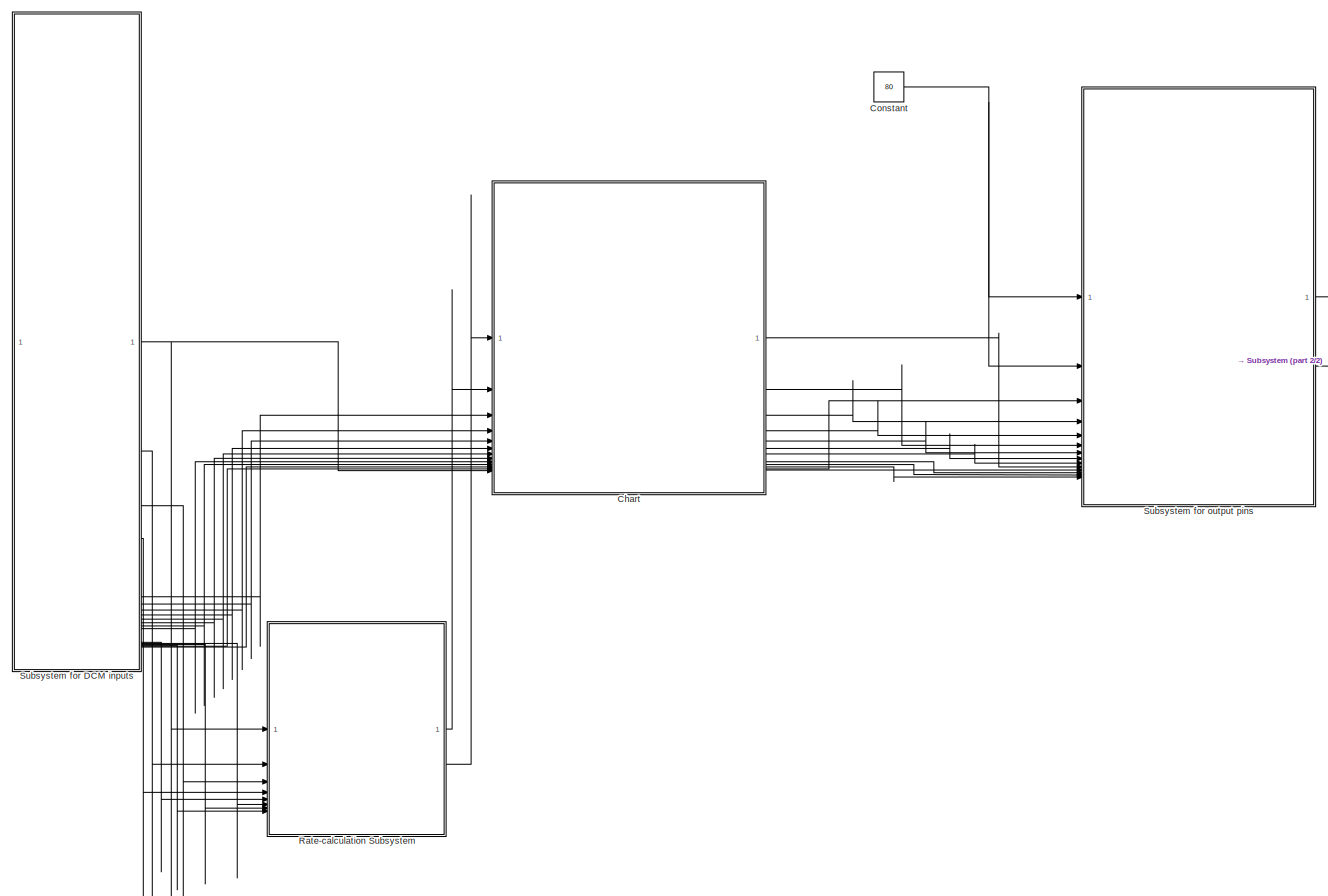
[diagram: root canvas - part 1/2, most of the canvas]
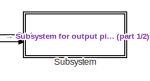
[diagram: root canvas - part 2/2, top right region]
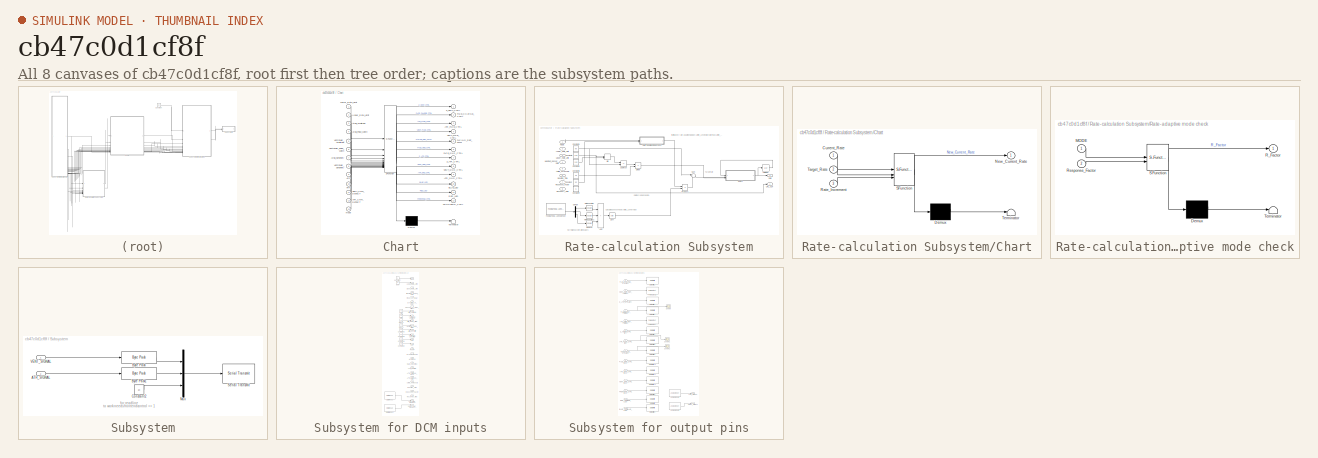
[diagram: thumbnail index - all 8 canvases of the model, root first then tree order]
MODEL slx_cb47c0d1cf8f
KIND model
CONFIG AbsTol = auto
CONFIG EnableMultiTasking = on
CONFIG FixedStep = 1e-3
CONFIG MaxStep = auto
CONFIG MinStep = auto
CONFIG RelTol = 1e-3
CONFIG SampleTimeConstraint = Unconstrained
CONFIG SolverName = FixedStepAuto
CONFIG StartTime = 0.0
CONFIG StopTime = 10
WORKSPACE source: mxarray member
WORKSPACE Initial_Value = 0
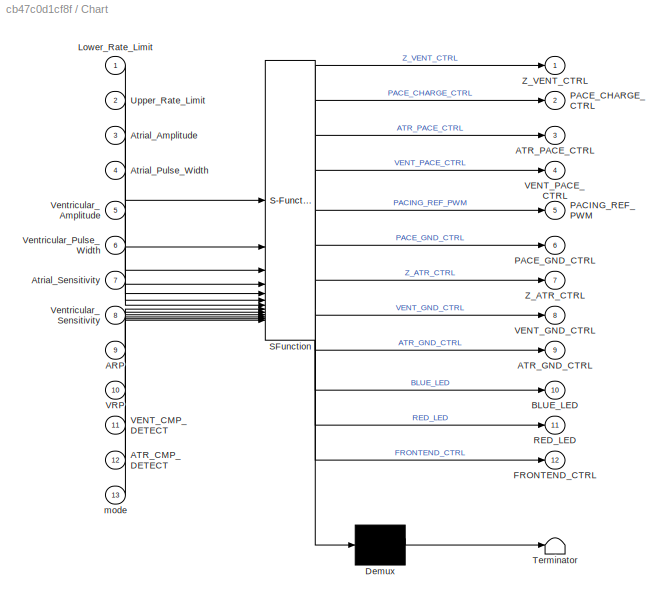
BLOCK [SubSystem] Chart
  ErrorFcn = Stateflow.Translate.translate
  PermitHierarchicalResolution = ExplicitOnly
  PortSchema = {"entries":[{"content":{"sides":[{"content":{"connectorIds":["In13","In1","In2","In3","In5","In4","In6","In7","In8","In10","In9","In12","In11"]},"type":"ConnectorPlacement.EquallySpacedRectSide","uuid":"4624e3e5-9266-4e51-8f1f-a7517f1382a8"},{"content":{"connectorIds":["Out12","Out3","Out4","Out2","Out5","Out6","Out7","Out1","Out8","Out9","Out10","Out11"],"side":"RIGHT"},"type":"ConnectorPlacement...<+378ch>
  SFBlockType = Chart
  TreatAsAtomicUnit = on
BLOCK [Demux] Chart/ Demux 
  Outputs = 1
BLOCK [S-Function] Chart/ SFunction 
  EnableBusSupport = on
  FunctionName = sf_sfun
  PortCounts = [13 13]
  SFcnIsStateOwnerBlock = off
  SFunctionDeploymentMode = off
  Tag = Stateflow S-Function 5
BLOCK [Terminator] Chart/ Terminator 
BLOCK [Inport] Chart/ARP
  Port = 9
BLOCK [Inport] Chart/ATR_CMP_DETECT
  Port = 12
BLOCK [Outport] Chart/ATR_GND_CTRL
  Port = 9
BLOCK [Outport] Chart/ATR_PACE_CTRL
  Port = 3
BLOCK [Inport] Chart/Atrial_Amplitude
  Port = 3
BLOCK [Inport] Chart/Atrial_Pulse_Width
  Port = 4
BLOCK [Inport] Chart/Atrial_Sensitivity
  Port = 7
BLOCK [Outport] Chart/BLUE_LED
  Port = 10
BLOCK [Outport] Chart/FRONTEND_CTRL
  Port = 12
BLOCK [Inport] Chart/Lower_Rate_Limit
BLOCK [Outport] Chart/PACE_CHARGE_CTRL
  Port = 2
BLOCK [Outport] Chart/PACE_GND_CTRL
  Port = 6
BLOCK [Outport] Chart/PACING_REF_PWM
  Port = 5
BLOCK [Outport] Chart/RED_LED
  Port = 11
BLOCK [Inport] Chart/Upper_Rate_Limit
  Port = 2
BLOCK [Inport] Chart/VENT_CMP_DETECT
  Port = 11
BLOCK [Outport] Chart/VENT_GND_CTRL
  Port = 8
BLOCK [Outport] Chart/VENT_PACE_CTRL
  Port = 4
BLOCK [Inport] Chart/VRP
  Port = 10
BLOCK [Inport] Chart/Ventricular_Amplitude
  Port = 5
BLOCK [Inport] Chart/Ventricular_Pulse_Width
  Port = 6
BLOCK [Inport] Chart/Ventricular_Sensitivity
  Port = 8
BLOCK [Outport] Chart/Z_ATR_CTRL
  Port = 7
BLOCK [Outport] Chart/Z_VENT_CTRL
BLOCK [Inport] Chart/mode
  Port = 13
BLOCK [Constant] Constant
  Value = 80
BLOCK [SubSystem] Rate-calculation Subsystem
BLOCK [Inport] Rate-calculation Subsystem/Activity_Threshold
  Port = 5
BLOCK [Sum] Rate-calculation Subsystem/Add
  IconShape = rectangular
  Inputs = +++
BLOCK [SubSystem] Rate-calculation Subsystem/Chart
  ErrorFcn = Stateflow.Translate.translate
  PermitHierarchicalResolution = ExplicitOnly
  SFBlockType = Chart
  TreatAsAtomicUnit = on
BLOCK [Demux] Rate-calculation Subsystem/Chart/ Demux 
  Outputs = 1
BLOCK [S-Function] Rate-calculation Subsystem/Chart/ SFunction 
  EnableBusSupport = on
  FunctionName = sf_sfun
  PortCounts = [3 2]
  SFcnIsStateOwnerBlock = off
  SFunctionDeploymentMode = off
  Tag = Stateflow S-Function 3
BLOCK [Terminator] Rate-calculation Subsystem/Chart/ Terminator 
BLOCK [Inport] Rate-calculation Subsystem/Chart/Current_Rate
BLOCK [Outport] Rate-calculation Subsystem/Chart/New_Current_Rate
BLOCK [Inport] Rate-calculation Subsystem/Chart/Rate_Increment
  Port = 3
BLOCK [Inport] Rate-calculation Subsystem/Chart/Target_Rate
  Port = 2
BLOCK [Constant] Rate-calculation Subsystem/Constant
  Value = 30
BLOCK [Constant] Rate-calculation Subsystem/Constant1
  Value = 60
BLOCK [Constant] Rate-calculation Subsystem/Constant2
  Value = 130
BLOCK [Constant] Rate-calculation Subsystem/Constant3
  Value = 10
BLOCK [Constant] Rate-calculation Subsystem/Constant4
  Value = 5
BLOCK [Constant] Rate-calculation Subsystem/Constant5
  Value = 140
BLOCK [Demux] Rate-calculation Subsystem/Demux
  Outputs = 3
BLOCK [Product] Rate-calculation Subsystem/Divide
  Inputs = */
BLOCK [Reference] Rate-calculation Subsystem/FXOS8700 6-Axes Sensor  REF=frdmk64flib/FXOS8700 6-Axes Sensor
  SourceBlock = frdmk64flib/FXOS8700 6-Axes Sensor
  SourceType = freedomk64f.fxos8700
BLOCK [Inport] Rate-calculation Subsystem/Lower_Rate_Limit
  Port = 2
BLOCK [Inport] Rate-calculation Subsystem/MODE
BLOCK [Math] Rate-calculation Subsystem/Math Function
  Operator = square
  RndMeth = Zero
  SignedPower = on
BLOCK [Math] Rate-calculation Subsystem/Math Function1
  Operator = square
  RndMeth = Zero
  SignedPower = on
BLOCK [Inport] Rate-calculation Subsystem/Maximum_Sensor_Rate
  Port = 4
BLOCK [MinMax] Rate-calculation Subsystem/Min
  Inputs = 2
BLOCK [Product] Rate-calculation Subsystem/Product
BLOCK [Outport] Rate-calculation Subsystem/Rate
  Port = 2
BLOCK [SubSystem] Rate-calculation Subsystem/Rate-adaptive mode check
  ErrorFcn = Stateflow.Translate.translate
  PermitHierarchicalResolution = ExplicitOnly
  SFBlockType = Chart
  TreatAsAtomicUnit = on
BLOCK [Demux] Rate-calculation Subsystem/Rate-adaptive mode check/ Demux 
  Outputs = 1
BLOCK [S-Function] Rate-calculation Subsystem/Rate-adaptive mode check/ SFunction 
  EnableBusSupport = on
  FunctionName = sf_sfun
  PortCounts = [2 2]
  SFcnIsStateOwnerBlock = off
  SFunctionDeploymentMode = off
  Tag = Stateflow S-Function 10
BLOCK [Terminator] Rate-calculation Subsystem/Rate-adaptive mode check/ Terminator 
BLOCK [Inport] Rate-calculation Subsystem/Rate-adaptive mode check/MODE
BLOCK [Outport] Rate-calculation Subsystem/Rate-adaptive mode check/R_Factor
BLOCK [Inport] Rate-calculation Subsystem/Rate-adaptive mode check/Response_Factor
  Port = 2
BLOCK [Inport] Rate-calculation Subsystem/Reaction_Time
  Port = 6
BLOCK [Inport] Rate-calculation Subsystem/Recovery_Time
  Port = 8
BLOCK [Inport] Rate-calculation Subsystem/Response_Factor
  Port = 7
BLOCK [Sqrt] Rate-calculation Subsystem/Sqrt
BLOCK [Math] Rate-calculation Subsystem/Square
  Operator = square
BLOCK [Sum] Rate-calculation Subsystem/Subtract
  IconShape = rectangular
  Inputs = +-
BLOCK [Sum] Rate-calculation Subsystem/Sum
  Inputs = |++
BLOCK [Outport] Rate-calculation Subsystem/URL_OUT
BLOCK [UnitDelay] Rate-calculation Subsystem/Unit Delay
  HasFrameUpgradeWarning = on
  SampleTime = -1
BLOCK [Inport] Rate-calculation Subsystem/Upper_Rate_Limit
  Port = 3
BLOCK [SubSystem] Subsystem
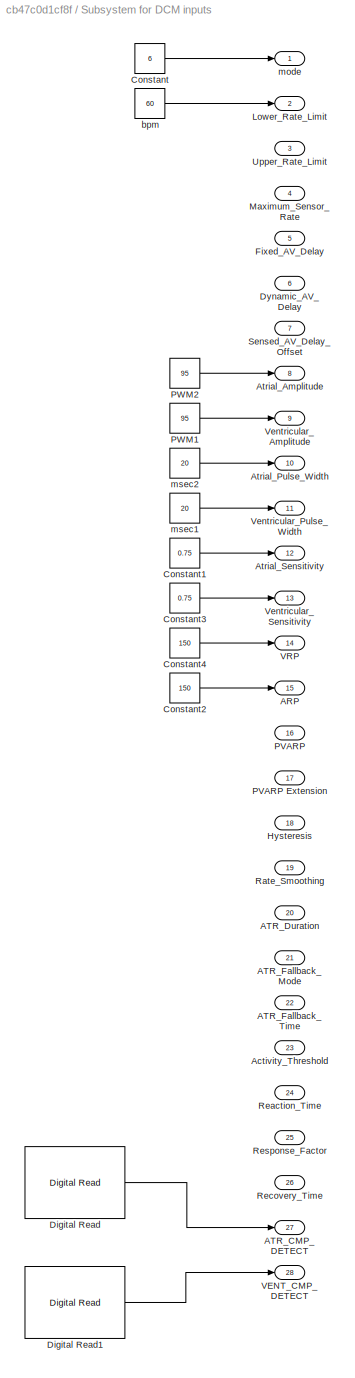
BLOCK [SubSystem] Subsystem for DCM inputs
BLOCK [Outport] Subsystem for DCM inputs/ARP
  Port = 15
BLOCK [Outport] Subsystem for DCM inputs/ATR_CMP_DETECT
  Port = 27
BLOCK [Outport] Subsystem for DCM inputs/ATR_Duration
  Port = 20
BLOCK [Outport] Subsystem for DCM inputs/ATR_Fallback_Mode
  Port = 21
BLOCK [Outport] Subsystem for DCM inputs/ATR_Fallback_Time
  Port = 22
BLOCK [Outport] Subsystem for DCM inputs/Activity_Threshold
  Port = 23
BLOCK [Outport] Subsystem for DCM inputs/Atrial_Amplitude
  Port = 8
BLOCK [Outport] Subsystem for DCM inputs/Atrial_Pulse_Width
  Port = 10
BLOCK [Outport] Subsystem for DCM inputs/Atrial_Sensitivity
  Port = 12
BLOCK [Constant] Subsystem for DCM inputs/Constant
  Value = 6
BLOCK [Constant] Subsystem for DCM inputs/Constant1
  Value = 0.75
BLOCK [Constant] Subsystem for DCM inputs/Constant2
  Value = 150
BLOCK [Constant] Subsystem for DCM inputs/Constant3
  Value = 0.75
BLOCK [Constant] Subsystem for DCM inputs/Constant4
  Value = 150
BLOCK [Reference] Subsystem for DCM inputs/Digital Read  REF=frdmk64flib/Digital Read
  SourceBlock = frdmk64flib/Digital Read
  SourceType = freedomk64f.DigitalRead
BLOCK [Reference] Subsystem for DCM inputs/Digital Read1  REF=frdmk64flib/Digital Read
  SourceBlock = frdmk64flib/Digital Read
  SourceType = freedomk64f.DigitalRead
BLOCK [Outport] Subsystem for DCM inputs/Dynamic_AV_Delay
  Port = 6
BLOCK [Outport] Subsystem for DCM inputs/Fixed_AV_Delay
  Port = 5
BLOCK [Outport] Subsystem for DCM inputs/Hysteresis
  Port = 18
BLOCK [Outport] Subsystem for DCM inputs/Lower_Rate_Limit
  Port = 2
BLOCK [Outport] Subsystem for DCM inputs/Maximum_Sensor_Rate
  Port = 4
BLOCK [Outport] Subsystem for DCM inputs/PVARP
  Port = 16
BLOCK [Outport] Subsystem for DCM inputs/PVARP Extension
  Port = 17
BLOCK [Constant] Subsystem for DCM inputs/PWM1
  Value = 95
BLOCK [Constant] Subsystem for DCM inputs/PWM2
  Value = 95
BLOCK [Outport] Subsystem for DCM inputs/Rate_Smoothing
  Port = 19
BLOCK [Outport] Subsystem for DCM inputs/Reaction_Time
  Port = 24
BLOCK [Outport] Subsystem for DCM inputs/Recovery_Time
  Port = 26
BLOCK [Outport] Subsystem for DCM inputs/Response_Factor
  Port = 25
BLOCK [Outport] Subsystem for DCM inputs/Sensed_AV_Delay_Offset
  Port = 7
BLOCK [Outport] Subsystem for DCM inputs/Upper_Rate_Limit
  Port = 3
BLOCK [Outport] Subsystem for DCM inputs/VENT_CMP_DETECT
  Port = 28
BLOCK [Outport] Subsystem for DCM inputs/VRP
  Port = 14
BLOCK [Outport] Subsystem for DCM inputs/Ventricular_Amplitude
  Port = 9
BLOCK [Outport] Subsystem for DCM inputs/Ventricular_Pulse_Width
  Port = 11
BLOCK [Outport] Subsystem for DCM inputs/Ventricular_Sensitivity
  Port = 13
BLOCK [Constant] Subsystem for DCM inputs/bpm
  Value = 60
BLOCK [Outport] Subsystem for DCM inputs/mode
BLOCK [Constant] Subsystem for DCM inputs/msec1
  Value = 20
BLOCK [Constant] Subsystem for DCM inputs/msec2
  Value = 20
BLOCK [SubSystem] Subsystem for output pins
BLOCK [Inport] Subsystem for output pins/ATR_CMP_REF_PWM (D6)
BLOCK [Inport] Subsystem for output pins/ATR_GND_CTRL (D11)
  Port = 12
BLOCK [Inport] Subsystem for output pins/ATR_PACE_CTRL (D8)
  Port = 4
BLOCK [Outport] Subsystem for output pins/ATR_SIGNAL
  Port = 2
BLOCK [Reference] Subsystem for output pins/Analog Input3  REF=frdmk64flib/Analog Input
  SourceBlock = frdmk64flib/Analog Input
  SourceType = freedomk64f.AnalogInput
BLOCK [Reference] Subsystem for output pins/Analog Input4  REF=frdmk64flib/Analog Input
  SourceBlock = frdmk64flib/Analog Input
  SourceType = freedomk64f.AnalogInput
BLOCK [Inport] Subsystem for output pins/BLUE_LED (BLUE_LED)
  Port = 13
BLOCK [Reference] Subsystem for output pins/Digital Write  REF=frdmk64flib/Digital Write
  SourceBlock = frdmk64flib/Digital Write
  SourceType = freedomk64f.DigitalWrite
BLOCK [Reference] Subsystem for output pins/Digital Write1  REF=frdmk64flib/Digital Write
  SourceBlock = frdmk64flib/Digital Write
  SourceType = freedomk64f.DigitalWrite
BLOCK [Reference] Subsystem for output pins/Digital Write10  REF=frdmk64flib/Digital Write
  SourceBlock = frdmk64flib/Digital Write
  SourceType = freedomk64f.DigitalWrite
BLOCK [Reference] Subsystem for output pins/Digital Write11  REF=frdmk64flib/Digital Write
  SourceBlock = frdmk64flib/Digital Write
  SourceType = freedomk64f.DigitalWrite
BLOCK [Reference] Subsystem for output pins/Digital Write14  REF=frdmk64flib/Digital Write
  SourceBlock = frdmk64flib/Digital Write
  SourceType = freedomk64f.DigitalWrite
BLOCK [Reference] Subsystem for output pins/Digital Write2  REF=frdmk64flib/Digital Write
  SourceBlock = frdmk64flib/Digital Write
  SourceType = freedomk64f.DigitalWrite
BLOCK [Reference] Subsystem for output pins/Digital Write3  REF=frdmk64flib/Digital Write
  SourceBlock = frdmk64flib/Digital Write
  SourceType = freedomk64f.DigitalWrite
BLOCK [Reference] Subsystem for output pins/Digital Write4  REF=frdmk64flib/Digital Write
  SourceBlock = frdmk64flib/Digital Write
  SourceType = freedomk64f.DigitalWrite
BLOCK [Reference] Subsystem for output pins/Digital Write5  REF=frdmk64flib/Digital Write
  SourceBlock = frdmk64flib/Digital Write
  SourceType = freedomk64f.DigitalWrite
BLOCK [Reference] Subsystem for output pins/Digital Write7  REF=frdmk64flib/Digital Write
  SourceBlock = frdmk64flib/Digital Write
  SourceType = freedomk64f.DigitalWrite
BLOCK [Reference] Subsystem for output pins/Digital Write8  REF=frdmk64flib/Digital Write
  SourceBlock = frdmk64flib/Digital Write
  SourceType = freedomk64f.DigitalWrite
BLOCK [Reference] Subsystem for output pins/Digital Write9  REF=frdmk64flib/Digital Write
  SourceBlock = frdmk64flib/Digital Write
  SourceType = freedomk64f.DigitalWrite
BLOCK [Inport] Subsystem for output pins/FRONTEND_CTRL (D13)
  Port = 3
BLOCK [Inport] Subsystem for output pins/PACE_CHARGE_CTRL (D2)
  Port = 6
BLOCK [Inport] Subsystem for output pins/PACE_GND_CTRL (D10)
  Port = 8
BLOCK [Inport] Subsystem for output pins/PACING_REF_PWM (D5)
  Port = 7
BLOCK [Reference] Subsystem for output pins/PWM Output  REF=frdmk64flib/PWM Output
  SourceBlock = frdmk64flib/PWM Output
  SourceType = freedomk64f.PWMOutput
BLOCK [Reference] Subsystem for output pins/PWM Output1  REF=frdmk64flib/PWM Output
  SourceBlock = frdmk64flib/PWM Output
  SourceType = freedomk64f.PWMOutput
BLOCK [Inport] Subsystem for output pins/RED_LED (RED_LED)
  Port = 14
BLOCK [Scope] Subsystem for output pins/Scope
  Floating = off
  NumInputPorts = 1
  ScopeSpecificationString = Simulink.scopes.TimeScopeBlockCfg('CurrentConfiguration', extmgr.ConfigurationSet(extmgr.Configuration('Core','General UI',true),extmgr.Configuration('Core','Source UI',true),extmgr.Configuration('Sources','WiredSimulink',true),extmgr.Configuration('Visuals','Time Domain',true,'SerializedDisplays',{struct('MinYLimReal','-11.25','MaxYLimReal','101.25','YLabelReal','','MinYLimMag','0.00000','MaxYLim...<+1331ch>
BLOCK [Scope] Subsystem for output pins/Scope1
  Floating = off
  NumInputPorts = 1
  ScopeSpecificationString = Simulink.scopes.TimeScopeBlockCfg('CurrentConfiguration', extmgr.ConfigurationSet(extmgr.Configuration('Core','General UI',true),extmgr.Configuration('Core','Source UI',true),extmgr.Configuration('Sources','WiredSimulink',true,'DataLoggingVariableName','ScopeData1'),extmgr.Configuration('Visuals','Time Domain',true,'SerializedDisplays',{struct('MinYLimReal','-0.125','MaxYLimReal','1.125','YLabelRe...<+1398ch>
BLOCK [Scope] Subsystem for output pins/Scope2
  Floating = off
  NumInputPorts = 1
  ScopeSpecificationString = Simulink.scopes.TimeScopeBlockCfg('CurrentConfiguration', extmgr.ConfigurationSet(extmgr.Configuration('Core','General UI',true),extmgr.Configuration('Core','Source UI',true),extmgr.Configuration('Sources','WiredSimulink',true,'DataLoggingVariableName','ScopeData2'),extmgr.Configuration('Visuals','Time Domain',true,'SerializedDisplays',{struct('MinYLimReal','-0.125','MaxYLimReal','1.125','YLabelRe...<+1366ch>
BLOCK [Inport] Subsystem for output pins/VENT_CMP_REF_PWM (D3)
  Port = 2
BLOCK [Inport] Subsystem for output pins/VENT_GND_CTRL (D12)
  Port = 11
BLOCK [Inport] Subsystem for output pins/VENT_PACE_CTRL (D9)
  Port = 5
BLOCK [Outport] Subsystem for output pins/VENT_SIGNAL
BLOCK [Inport] Subsystem for output pins/Z_ATR_CTRL (D4)
  Port = 9
BLOCK [Inport] Subsystem for output pins/Z_VENT_CTRL (D7)
  Port = 10
BLOCK [Inport] Subsystem/ATR_SIGNAL
  Port = 2
BLOCK [Reference] Subsystem/Byte Pack  REF=etargetslib/Byte Pack
  SourceBlock = etargetslib/Byte Pack
  SourceType = Byte pack
BLOCK [Reference] Subsystem/Byte Pack1  REF=etargetslib/Byte Pack
  SourceBlock = etargetslib/Byte Pack
  SourceType = Byte pack
BLOCK [Constant] Subsystem/Constant2
  OutDataTypeStr = uint8
  Value = 10
BLOCK [Mux] Subsystem/Mux
  DisplayOption = bar
  Inputs = 3
BLOCK [Reference] Subsystem/Serial Transmit  REF=frdmk64flib/Serial Transmit
  SourceBlock = frdmk64flib/Serial Transmit
  SourceType = freedomk64f.SCIWrite
BLOCK [Inport] Subsystem/VENT_SIGNAL
ANNOTATION Rate-calculation Subsystem: Calculated sensor input (Activity_Level) value
ANNOTATION Rate-calculation Subsystem: If set to a non-rate-adaptive MODE or Activity_Level not greater than Activity_Threshold, then use Lower_Rate_Limit as the Rate
ANNOTATION Rate-calculation Subsystem: Normalize acceleration values
ANNOTATION Rate-calculation Subsystem: Rate increment (bpm/s)
ANNOTATION Rate-calculation Subsystem: Target rate
ANNOTATION Subsystem: \n for readline to work needs frontendcontrol == 1
LINE Chart:1 -> Subsystem for output pins:10
LINE Chart:10 -> Subsystem for output pins:13
LINE Chart:11 -> Subsystem for output pins:14
LINE Chart:12 -> Subsystem for output pins:3
LINE Chart:2 -> Subsystem for output pins:6
LINE Chart:3 -> Subsystem for output pins:4
LINE Chart:4 -> Subsystem for output pins:5
LINE Chart:5 -> Subsystem for output pins:7
LINE Chart:6 -> Subsystem for output pins:8
LINE Chart:7 -> Subsystem for output pins:9
LINE Chart:8 -> Subsystem for output pins:11
LINE Chart:9 -> Subsystem for output pins:12
NET Constant:1 -> Subsystem for output pins:1, Subsystem for output pins:2
LINE Rate-calculation Subsystem/Add:1 -> Rate-calculation Subsystem/Sqrt:1
NET Rate-calculation Subsystem/Chart:1 -> Rate-calculation Subsystem/Rate:1, Rate-calculation Subsystem/Unit Delay:1
NET Rate-calculation Subsystem/Constant1:1 -> Rate-calculation Subsystem/Subtract:2, Rate-calculation Subsystem/Sum:1
LINE Rate-calculation Subsystem/Constant2:1 -> Rate-calculation Subsystem/Min:2
LINE Rate-calculation Subsystem/Constant3:1 -> Rate-calculation Subsystem/Divide:2
NET Rate-calculation Subsystem/Constant5:1 -> Rate-calculation Subsystem/Min:1, Rate-calculation Subsystem/URL_OUT:1
LINE Rate-calculation Subsystem/Constant:1 -> Rate-calculation Subsystem/Rate-adaptive mode check:2
LINE Rate-calculation Subsystem/Demux:1 -> Rate-calculation Subsystem/Math Function:1
LINE Rate-calculation Subsystem/Demux:2 -> Rate-calculation Subsystem/Math Function1:1
LINE Rate-calculation Subsystem/Demux:3 -> Rate-calculation Subsystem/Square:1
LINE Rate-calculation Subsystem/Divide:1 -> Rate-calculation Subsystem/Chart:3
LINE Rate-calculation Subsystem/FXOS8700 6-Axes Sensor:2 -> Rate-calculation Subsystem/Demux:1
LINE Rate-calculation Subsystem/MODE:1 -> Rate-calculation Subsystem/Rate-adaptive mode check:1
LINE Rate-calculation Subsystem/Math Function1:1 -> Rate-calculation Subsystem/Add:2
LINE Rate-calculation Subsystem/Math Function:1 -> Rate-calculation Subsystem/Add:1
LINE Rate-calculation Subsystem/Min:1 -> Rate-calculation Subsystem/Subtract:1
LINE Rate-calculation Subsystem/Product:1 -> Rate-calculation Subsystem/Sum:2
LINE Rate-calculation Subsystem/Rate-adaptive mode check:1 -> Rate-calculation Subsystem/Product:1
LINE Rate-calculation Subsystem/Sqrt:1 -> Rate-calculation Subsystem/Product:2
LINE Rate-calculation Subsystem/Square:1 -> Rate-calculation Subsystem/Add:3
LINE Rate-calculation Subsystem/Subtract:1 -> Rate-calculation Subsystem/Divide:1
LINE Rate-calculation Subsystem/Sum:1 -> Rate-calculation Subsystem/Chart:2
LINE Rate-calculation Subsystem/Unit Delay:1 -> Rate-calculation Subsystem/Chart:1
LINE Rate-calculation Subsystem:1 -> Chart:2
LINE Rate-calculation Subsystem:2 -> Chart:1
LINE Subsystem for DCM inputs/Constant1:1 -> Subsystem for DCM inputs/Atrial_Sensitivity:1
LINE Subsystem for DCM inputs/Constant2:1 -> Subsystem for DCM inputs/ARP:1
LINE Subsystem for DCM inputs/Constant3:1 -> Subsystem for DCM inputs/Ventricular_Sensitivity:1
LINE Subsystem for DCM inputs/Constant4:1 -> Subsystem for DCM inputs/VRP:1
LINE Subsystem for DCM inputs/Constant:1 -> Subsystem for DCM inputs/mode:1
LINE Subsystem for DCM inputs/Digital Read1:1 -> Subsystem for DCM inputs/VENT_CMP_DETECT:1
LINE Subsystem for DCM inputs/Digital Read:1 -> Subsystem for DCM inputs/ATR_CMP_DETECT:1
LINE Subsystem for DCM inputs/PWM1:1 -> Subsystem for DCM inputs/Ventricular_Amplitude:1
LINE Subsystem for DCM inputs/PWM2:1 -> Subsystem for DCM inputs/Atrial_Amplitude:1
LINE Subsystem for DCM inputs/bpm:1 -> Subsystem for DCM inputs/Lower_Rate_Limit:1
LINE Subsystem for DCM inputs/msec1:1 -> Subsystem for DCM inputs/Ventricular_Pulse_Width:1
LINE Subsystem for DCM inputs/msec2:1 -> Subsystem for DCM inputs/Atrial_Pulse_Width:1
NET Subsystem for DCM inputs:1 -> Chart:13, Rate-calculation Subsystem:1
LINE Subsystem for DCM inputs:10 -> Chart:4
LINE Subsystem for DCM inputs:11 -> Chart:6
LINE Subsystem for DCM inputs:12 -> Chart:7
LINE Subsystem for DCM inputs:13 -> Chart:8
LINE Subsystem for DCM inputs:14 -> Chart:10
LINE Subsystem for DCM inputs:15 -> Chart:9
LINE Subsystem for DCM inputs:2 -> Rate-calculation Subsystem:2
LINE Subsystem for DCM inputs:23 -> Rate-calculation Subsystem:5
LINE Subsystem for DCM inputs:24 -> Rate-calculation Subsystem:6
LINE Subsystem for DCM inputs:25 -> Rate-calculation Subsystem:7
LINE Subsystem for DCM inputs:26 -> Rate-calculation Subsystem:8
LINE Subsystem for DCM inputs:27 -> Chart:12
LINE Subsystem for DCM inputs:28 -> Chart:11
LINE Subsystem for DCM inputs:3 -> Rate-calculation Subsystem:3
LINE Subsystem for DCM inputs:4 -> Rate-calculation Subsystem:4
LINE Subsystem for DCM inputs:8 -> Chart:3
LINE Subsystem for DCM inputs:9 -> Chart:5
LINE Subsystem for output pins/ATR_CMP_REF_PWM (D6):1 -> Subsystem for output pins/PWM Output:1
LINE Subsystem for output pins/ATR_GND_CTRL (D11):1 -> Subsystem for output pins/Digital Write11:1
NET Subsystem for output pins/ATR_PACE_CTRL (D8):1 -> Subsystem for output pins/Digital Write8:1, Subsystem for output pins/Scope1:1
LINE Subsystem for output pins/Analog Input3:1 -> Subsystem for output pins/VENT_SIGNAL:1
LINE Subsystem for output pins/Analog Input4:1 -> Subsystem for output pins/ATR_SIGNAL:1
LINE Subsystem for output pins/BLUE_LED (BLUE_LED):1 -> Subsystem for output pins/Digital Write3:1
LINE Subsystem for output pins/FRONTEND_CTRL (D13):1 -> Subsystem for output pins/Digital Write5:1
LINE Subsystem for output pins/PACE_CHARGE_CTRL (D2):1 -> Subsystem for output pins/Digital Write2:1
LINE Subsystem for output pins/PACE_GND_CTRL (D10):1 -> Subsystem for output pins/Digital Write10:1
NET Subsystem for output pins/PACING_REF_PWM (D5):1 -> Subsystem for output pins/Digital Write1:1, Subsystem for output pins/Scope:1
LINE Subsystem for output pins/RED_LED (RED_LED):1 -> Subsystem for output pins/Digital Write:1
LINE Subsystem for output pins/VENT_CMP_REF_PWM (D3):1 -> Subsystem for output pins/PWM Output1:1
LINE Subsystem for output pins/VENT_GND_CTRL (D12):1 -> Subsystem for output pins/Digital Write14:1
NET Subsystem for output pins/VENT_PACE_CTRL (D9):1 -> Subsystem for output pins/Digital Write9:1, Subsystem for output pins/Scope2:1
LINE Subsystem for output pins/Z_ATR_CTRL (D4):1 -> Subsystem for output pins/Digital Write4:1
LINE Subsystem for output pins/Z_VENT_CTRL (D7):1 -> Subsystem for output pins/Digital Write7:1
LINE Subsystem for output pins:1 -> Subsystem:1
LINE Subsystem for output pins:2 -> Subsystem:2
LINE Subsystem/ATR_SIGNAL:1 -> Subsystem/Byte Pack1:1
LINE Subsystem/Byte Pack1:1 -> Subsystem/Mux:2
LINE Subsystem/Byte Pack:1 -> Subsystem/Mux:1
LINE Subsystem/Constant2:1 -> Subsystem/Mux:3
LINE Subsystem/Mux:1 -> Subsystem/Serial Transmit:1
LINE Subsystem/VENT_SIGNAL:1 -> Subsystem/Byte Pack:1
note: NET lines group one-source signal fan-out (src -> all destinations, sorted); 1:1 wires keep LINE
CHART Rate-calculation Subsystem/Chart states=5 transitions=6
  STATE_LABEL 'INCREASE\nNew_Current_Rate = New_Current_Rate + Rate_Increment/1000'
  STATE_LABEL 'ENTRY\nNew_Current_Rate = Current_Rate'
  STATE_LABEL 'UPDATE_RATE\n'
  STATE_LABEL 'DECREASE\nNew_Current_Rate = New_Current_Rate - Rate_Increment/1000'
  STATE_LABEL 'Every millisecond, either increase or decrease the rate'
CHART Chart states=15 transitions=21
  STATE_LABEL 'VOO'
  STATE_LABEL 'VOO: Pace Ventrical at constant rate'
  STATE_LABEL 'Charging\n\nentry:\nPACING_REF_PWM = Ventricular_Amplitude;\nPACE_CHARGE_CTRL = 1;\nVENT_PACE_CTRL = 0;\nVENT_GND_CTRL = 1;\nPACE_GND_CTRL = 0;\nZ_VENT_CTRL = 0;\nATR_PACE_CTRL = 0;\nATR_GND_CTRL = 0;\nFRONTEND_CTRL = 1;\nZ_ATR_CTRL = 0;\n%LED_RED = 0;\n%LED_BLUE = 1;'
  STATE_LABEL 'pacing\n\nentry:\nPACING_REF_PWM = Ventricular_Amplitude;\nPACE_CHARGE_CTRL = 0;\nVENT_PACE_CTRL = 1;\nVENT_GND_CTRL = 0;\nPACE_GND_CTRL = 1;\nZ_VENT_CTRL = 0;\nATR_PACE_CTRL = 0;\nATR_GND_CTRL = 0;\nZ_ATR_CTRL = 0;\n%LED_RED = 1;\n%LED_BLUE = 0;'
  STATE_LABEL '[after((60000/Lower_Rate_Limit)- (Ventricular_Pulse_Width), msec)]'
  STATE_LABEL '[after(Ventricular_Pulse_Width,msec)]'
  STATE_LABEL 'VOO: Pace Ventrical at constant rate'
  STATE_LABEL 'Charging\n\nentry:\nPACING_REF_PWM = Ventricular_Amplitude;\nPACE_CHARGE_CTRL = 1;\nVENT_PACE_CTRL = 0;\nVENT_GND_CTRL = 1;\nPACE_GND_CTRL = 0;\nZ_VENT_CTRL = 0;\nATR_PACE_CTRL = 0;\nATR_GND_CTRL = 0;\nFRONTEND_CTRL = 1;\nZ_ATR_CTRL = 0;\n%LED_RED = 0;\n%LED_BLUE = 1;'
  STATE_LABEL 'pacing\n\nentry:\nPACING_REF_PWM = Ventricular_Amplitude;\nPACE_CHARGE_CTRL = 0;\nVENT_PACE_CTRL = 1;\nVENT_GND_CTRL = 0;\nPACE_GND_CTRL = 1;\nZ_VENT_CTRL = 0;\nATR_PACE_CTRL = 0;\nATR_GND_CTRL = 0;\nZ_ATR_CTRL = 0;\n%LED_RED = 1;\n%LED_BLUE = 0;'
  STATE_LABEL 'AOO'
  STATE_LABEL 'AOO: Pace Atrium at constant rate'
  STATE_LABEL 'Charging\n\nentry:\nPACING_REF_PWM = Atrial_Amplitude;\nPACE_CHARGE_CTRL = 1;\nATR_PACE_CTRL = 0;\nATR_GND_CTRL = 1;\nPACE_GND_CTRL = 0;\nZ_ATR_CTRL = 0;\nVENT_PACE_CTRL = 0;\nVENT_GND_CTRL = 0;\nZ_VENT_CTRL = 0;\nFRONTEND_CTRL = 1;\n%LED_RED = 0;\n%LED_BLUE = 1;'
  STATE_LABEL 'Discharging\n\nentry:\nPACING_REF_PWM = Atrial_Amplitude;\nPACE_CHARGE_CTRL = 0;\nATR_PACE_CTRL = 1;\nATR_GND_CTRL = 0;\nPACE_GND_CTRL = 1;\nZ_ATR_CTRL = 0;\nVENT_PACE_CTRL = 0;\nVENT_GND_CTRL = 0;\nZ_VENT_CTRL = 0;\n%LED_RED = 1;\n%LED_BLUE = 0;'
  STATE_LABEL '[after((60000/Lower_Rate_Limit)- (Atrial_Pulse_Width), msec)]'
  STATE_LABEL '[after(Atrial_Pulse_Width,msec)]'
  STATE_LABEL 'AOO: Pace Atrium at constant rate'
  STATE_LABEL 'Charging\n\nentry:\nPACING_REF_PWM = Atrial_Amplitude;\nPACE_CHARGE_CTRL = 1;\nATR_PACE_CTRL = 0;\nATR_GND_CTRL = 1;\nPACE_GND_CTRL = 0;\nZ_ATR_CTRL = 0;\nVENT_PACE_CTRL = 0;\nVENT_GND_CTRL = 0;\nZ_VENT_CTRL = 0;\nFRONTEND_CTRL = 1;\n%LED_RED = 0;\n%LED_BLUE = 1;'
  STATE_LABEL 'Discharging\n\nentry:\nPACING_REF_PWM = Atrial_Amplitude;\nPACE_CHARGE_CTRL = 0;\nATR_PACE_CTRL = 1;\nATR_GND_CTRL = 0;\nPACE_GND_CTRL = 1;\nZ_ATR_CTRL = 0;\nVENT_PACE_CTRL = 0;\nVENT_GND_CTRL = 0;\nZ_VENT_CTRL = 0;\n%LED_RED = 1;\n%LED_BLUE = 0;'
  STATE_LABEL 'start'
  STATE_LABEL 'AAI'
  STATE_LABEL 'Pacing\n\nentry:\nPACING_REF_PWM = Atrial_Amplitude;\nPACE_CHARGE_CTRL=0;\nATR_PACE_CTRL= 1;\nATR_GND_CTRL= 0;\nPACE_GND_CTRL=1;\nZ_ATR_CTRL=0;\nRED_LED = 0\nBLUE_LED = 1'
  STATE_LABEL 'Charging_and_Sensing\n\nentry:\nPACING_REF_PWM = Atrial_Amplitude\nPACE_CHARGE_CTRL=1;\nATR_PACE_CTRL= 0;\nATR_GND_CTRL= 1;\nPACE_GND_CTRL=0;\nZ_ATR_CTRL=0;\nFRONTEND_CTRL = 1;\n%ATR_CMP_REF_PWM = Atrial_Sensitivity;\nRED_LED = 1\nBLUE_LED = 0'
  STATE_LABEL 'after(Atrial_Pulse_Width,msec)'
  STATE_LABEL 'after(ARP-Atrial_Pulse_Width, msec)'
  STATE_LABEL 'after((60000/Lower_Rate_Limit)-ARP,msec)[ATR_CMP_DETECT == 0]'
  STATE_LABEL '[ATR_CMP_DETECT == 1]'
  STATE_LABEL 'Pacing\n\nentry:\nPACING_REF_PWM = Atrial_Amplitude;\nPACE_CHARGE_CTRL=0;\nATR_PACE_CTRL= 1;\nATR_GND_CTRL= 0;\nPACE_GND_CTRL=1;\nZ_ATR_CTRL=0;\nRED_LED = 0\nBLUE_LED = 1'
  STATE_LABEL 'Charging_and_Sensing\n\nentry:\nPACING_REF_PWM = Atrial_Amplitude\nPACE_CHARGE_CTRL=1;\nATR_PACE_CTRL= 0;\nATR_GND_CTRL= 1;\nPACE_GND_CTRL=0;\nZ_ATR_CTRL=0;\nFRONTEND_CTRL = 1;\n%ATR_CMP_REF_PWM = Atrial_Sensitivity;\nRED_LED = 1\nBLUE_LED = 0'
  STATE_LABEL 'VVI'
  STATE_LABEL 'Pacing1\n\nentry:\nPACING_REF_PWM = Ventricular_Amplitude;\nPACE_CHARGE_CTRL = 0;\nVENT_PACE_CTRL = 1;\nVENT_GND_CTRL = 0;\nPACE_GND_CTRL = 1;\nZ_VENT_CTRL = 0;\n'
  STATE_LABEL 'Charging_and_Sensing1\n\nentry:\nPACING_REF_PWM = Ventricular_Amplitude;\nPACE_CHARGE_CTRL = 1;\nVENT_PACE_CTRL = 0;\nVENT_GND_CTRL = 1;\nPACE_GND_CTRL = 0;\nZ_VENT_CTRL = 0;\nFRONTEND_CTRL = 1;\n%VENT_CMP_REF_PWM = S_Amp;'
  STATE_LABEL '[after(Ventricular_Pulse_Width,msec)]'
  STATE_LABEL 'after(VRP-Ventricular_Pulse_Width,msec)'
  STATE_LABEL 'after((60000/Lower_Rate_Limit)-VRP,msec)[VENT_CMP_DETECT == 0]'
  STATE_LABEL '[VENT_CMP_DETECT == 1]'
  STATE_LABEL 'Pacing1\n\nentry:\nPACING_REF_PWM = Ventricular_Amplitude;\nPACE_CHARGE_CTRL = 0;\nVENT_PACE_CTRL = 1;\nVENT_GND_CTRL = 0;\nPACE_GND_CTRL = 1;\nZ_VENT_CTRL = 0;\n'
  STATE_LABEL 'Charging_and_Sensing1\n\nentry:\nPACING_REF_PWM = Ventricular_Amplitude;\nPACE_CHARGE_CTRL = 1;\nVENT_PACE_CTRL = 0;\nVENT_GND_CTRL = 1;\nPACE_GND_CTRL = 0;\nZ_VENT_CTRL = 0;\nFRONTEND_CTRL = 1;\n%VENT_CMP_REF_PWM = S_Amp;'
CHART Rate-calculation Subsystem/Rate-adaptive mode check states=5 transitions=5
  STATE_LABEL '<!DOCTYPE HTML PUBLIC "-//W3C//DTD HTML 4.0//EN" "http://www.w3.org/TR/REC-html40/strict.dtd">\n<html><head><meta name="qrichtext" content="1" /><style type="text/css">\np, li { white-space: pre-wrap; }\n</style></head><body align="left" style=" font-family:\'Helvetica\'; font-size:12px; font-weight:400; font-style:normal;">\n<p align="center" style=" margin-top:0px; margin-bottom:0px; margin-left:0px; ...<+256ch>'
  STATE_LABEL '<!DOCTYPE HTML PUBLIC "-//W3C//DTD HTML 4.0//EN" "http://www.w3.org/TR/REC-html40/strict.dtd">\n<html><head><meta name="qrichtext" content="1" /><style type="text/css">\np, li { white-space: pre-wrap; }\n</style></head><body align="left" style=" font-family:\'Helvetica\'; font-size:12px; font-weight:400; font-style:normal;">\n<p align="center" style=" margin-top:0px; margin-bottom:0px; margin-left:0px; ...<+260ch>'
  STATE_LABEL 'NON_ADAPTIVE_MODE\nR_Factor = 0;'
  STATE_LABEL 'ADAPTIVE_MODE\nR_Factor = Response_Factor;\n'
  STATE_LABEL 'ENTRY'
CHART  states=0 transitions=0
CHART  states=0 transitions=0
CHART  states=0 transitions=0
